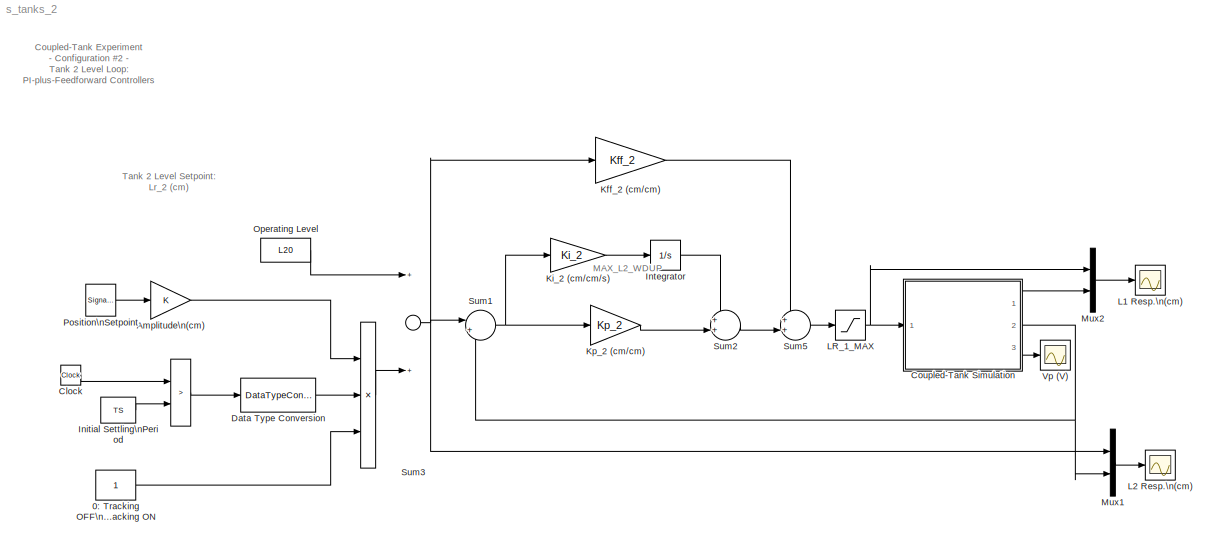
MODEL s_tanks_2
KIND model
BLOCK [Product]    
  Inputs = 3
  Ports = [3, 1]
  SID = 1
BLOCK [RelationalOperator]     
  Operator = >
  Ports = [2, 1]
  SID = 2
BLOCK [Constant] 0: Tracking OFF\n1: Tracking ON
  SID = 3
BLOCK [Gain] Amplitude\n(cm)
  SID = 4
BLOCK [Clock] Clock
  SID = 5
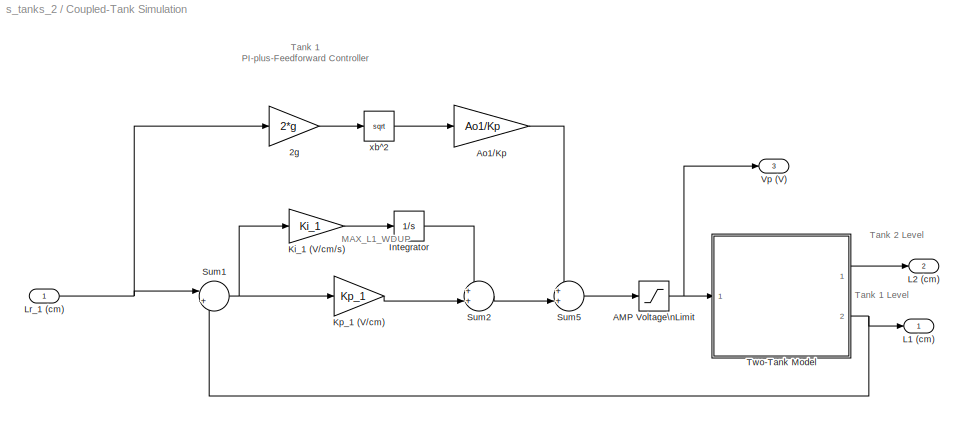
BLOCK [SubSystem] Coupled-Tank Simulation
  Ports = [1, 3]
  RequestExecContextInheritance = off
  SID = 6
  Variant = off
BLOCK [Gain] Coupled-Tank Simulation/2g
  Gain = 2*g
  SID = 8
BLOCK [Saturate] Coupled-Tank Simulation/AMP Voltage\nLimit
  InputPortMap = u0
  LowerLimit = 0
  Ports = [1, 1]
  SID = 9
  UpperLimit = VMAX_AMP
BLOCK [Gain] Coupled-Tank Simulation/Ao1//Kp
  Gain = Ao1/Kp
  SID = 10
BLOCK [Integrator] Coupled-Tank Simulation/Integrator
  LimitOutput = on
  LowerSaturationLimit = - MAX_L1_WDUP
  Ports = [1, 1]
  SID = 11
  UpperSaturationLimit = MAX_L1_WDUP
BLOCK [Gain] Coupled-Tank Simulation/Ki_1 (V//cm//s)
  Gain = Ki_1
  SID = 12
BLOCK [Gain] Coupled-Tank Simulation/Kp_1 (V//cm)
  Gain = Kp_1
  SID = 13
BLOCK [Outport] Coupled-Tank Simulation/L1 (cm)
  IconDisplay = Port number
  InitialOutput = 0
  SID = 42
BLOCK [Outport] Coupled-Tank Simulation/L2 (cm)
  IconDisplay = Port number
  InitialOutput = 0
  Port = 2
  SID = 43
BLOCK [Inport] Coupled-Tank Simulation/Lr_1 (cm)
  IconDisplay = Port number
  SID = 7
BLOCK [Sum] Coupled-Tank Simulation/Sum1
  IconShape = round
  Inputs = |+-
  Ports = [2, 1]
  SID = 14
BLOCK [Sum] Coupled-Tank Simulation/Sum2
  IconShape = round
  Inputs = ++|
  Ports = [2, 1]
  SID = 15
BLOCK [Sum] Coupled-Tank Simulation/Sum5
  IconShape = round
  Inputs = ++|
  Ports = [2, 1]
  SID = 16
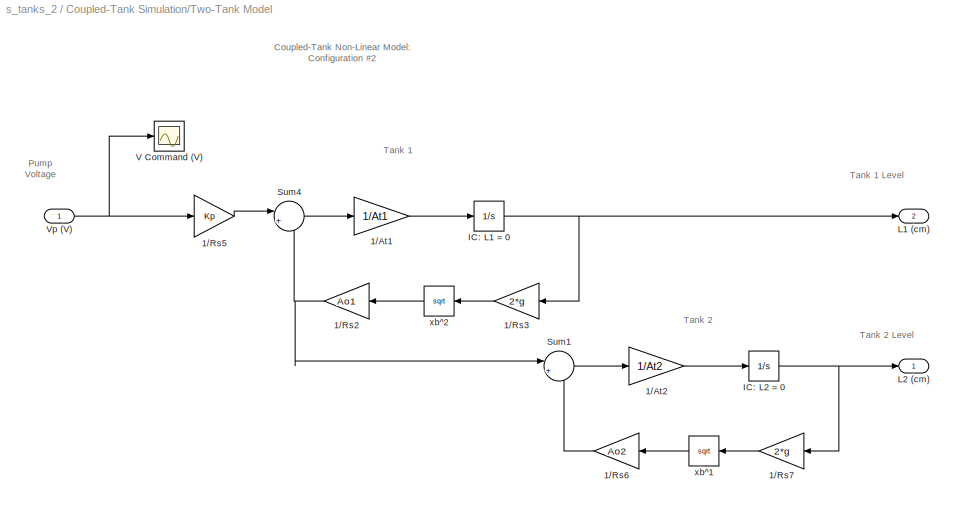
BLOCK [SubSystem] Coupled-Tank Simulation/Two-Tank Model
  Ports = [1, 2]
  RequestExecContextInheritance = off
  SID = 17
  Variant = off
BLOCK [Gain] Coupled-Tank Simulation/Two-Tank Model/1//At1
  Gain = 1/At1
  SID = 19
BLOCK [Gain] Coupled-Tank Simulation/Two-Tank Model/1//At2
  Gain = 1/At2
  SID = 20
BLOCK [Gain] Coupled-Tank Simulation/Two-Tank Model/1//Rs2
  Gain = Ao1
  SID = 21
BLOCK [Gain] Coupled-Tank Simulation/Two-Tank Model/1//Rs3
  Gain = 2*g
  SID = 22
BLOCK [Gain] Coupled-Tank Simulation/Two-Tank Model/1//Rs5
  Gain = Kp
  SID = 23
BLOCK [Gain] Coupled-Tank Simulation/Two-Tank Model/1//Rs6
  Gain = Ao2
  SID = 24
BLOCK [Gain] Coupled-Tank Simulation/Two-Tank Model/1//Rs7
  Gain = 2*g
  SID = 25
BLOCK [Integrator] Coupled-Tank Simulation/Two-Tank Model/IC: L1 = 0
  Ports = [1, 1]
  SID = 26
BLOCK [Integrator] Coupled-Tank Simulation/Two-Tank Model/IC: L2 = 0
  Ports = [1, 1]
  SID = 27
BLOCK [Outport] Coupled-Tank Simulation/Two-Tank Model/L1 (cm)
  IconDisplay = Port number
  InitialOutput = 0
  Port = 2
  SID = 34
BLOCK [Outport] Coupled-Tank Simulation/Two-Tank Model/L2 (cm)
  IconDisplay = Port number
  InitialOutput = 0
  SID = 33
BLOCK [Sum] Coupled-Tank Simulation/Two-Tank Model/Sum1
  IconShape = round
  Inputs = |+-
  Ports = [2, 1]
  SID = 28
BLOCK [Sum] Coupled-Tank Simulation/Two-Tank Model/Sum4
  IconShape = round
  Inputs = |+-
  Ports = [2, 1]
  SID = 29
BLOCK [Scope] Coupled-Tank Simulation/Two-Tank Model/V Command (V)
  NumInputPorts = 1
  Ports = [1]
  SID = 30
  ScopeSpecificationString = C++SS(StrPVP('Location','[90, 597, 641, 902]'),StrPVP('Open','off'),StrPVP('TickLabels','on'),MxPVP('AxesTitles',24,'struct(''axes1'',''%<SignalLabel>'')'),StrPVP('TimeRange','1.000000'),StrPVP('YMin','-1'),StrPVP('YMax','1'),StrPVP('SaveName','ScopeData2'),StrPVP('BlockParamSampleTime','0'),StrPVP('LimitDataPoints','on'),StrPVP('DataFormat','Array'),StrPVP('Decimation','1'),StrPVP('BlockParamSamp...<+16ch>
BLOCK [Inport] Coupled-Tank Simulation/Two-Tank Model/Vp (V)
  IconDisplay = Port number
  SID = 18
BLOCK [Math] Coupled-Tank Simulation/Two-Tank Model/xb^1
  Operator = sqrt
  Ports = [1, 1]
  SID = 31
BLOCK [Math] Coupled-Tank Simulation/Two-Tank Model/xb^2
  Operator = sqrt
  Ports = [1, 1]
  SID = 32
BLOCK [Outport] Coupled-Tank Simulation/Vp (V)
  IconDisplay = Port number
  InitialOutput = 0
  Port = 3
  SID = 44
BLOCK [Math] Coupled-Tank Simulation/xb^2
  Operator = sqrt
  Ports = [1, 1]
  SID = 41
BLOCK [DataTypeConversion] Data Type Conversion
  RndMeth = Floor
  SID = 49
  SaturateOnIntegerOverflow = off
BLOCK [Constant] Initial Settling\nPeriod
  SID = 50
  Value = TS
BLOCK [Integrator] Integrator
  LimitOutput = on
  LowerSaturationLimit = - MAX_L2_WDUP
  Ports = [1, 1]
  SID = 51
  UpperSaturationLimit = MAX_L2_WDUP
BLOCK [Gain] Kff_2 (cm//cm)
  Gain = Kff_2
  SID = 52
BLOCK [Gain] Ki_2 (cm//cm//s)
  Gain = Ki_2
  SID = 53
BLOCK [Gain] Kp_2 (cm//cm)
  Gain = Kp_2
  SID = 54
BLOCK [Scope] L1 Resp.\n(cm)
  NumInputPorts = 1
  Ports = [1]
  SID = 55
  ScopeSpecificationString = C++SS(StrPVP('Location','[1072, 54, 1653, 375]'),StrPVP('Open','off'),StrPVP('TickLabels','on'),MxPVP('AxesTitles',24,'struct(''axes1'',''%<SignalLabel>'')'),StrPVP('TimeRange','60'),StrPVP('YMin','0'),StrPVP('YMax','30'),StrPVP('SaveToWorkspace','on'),StrPVP('SaveName','data_L1'),StrPVP('LimitDataPoints','off'),StrPVP('BlockParamSampleTime','0'),StrPVP('DataFormat','Array'),StrPVP('Decimation','1...<+41ch>
BLOCK [Scope] L2 Resp.\n(cm)
  NumInputPorts = 1
  Ports = [1]
  SID = 56
  ScopeSpecificationString = C++SS(StrPVP('Location','[1072, 438, 1651, 761]'),StrPVP('Open','off'),StrPVP('TickLabels','on'),StrPVP('ZoomMode','yonly'),MxPVP('AxesTitles',24,'struct(''axes1'',''%<SignalLabel>'')'),StrPVP('TimeRange','60'),StrPVP('YMin','12'),StrPVP('YMax','17'),StrPVP('SaveToWorkspace','on'),StrPVP('SaveName','data_L2'),StrPVP('LimitDataPoints','off'),StrPVP('BlockParamSampleTime','0'),StrPVP('DataFormat','A...<+70ch>
BLOCK [Saturate] LR_1_MAX
  InputPortMap = u0
  LowerLimit = 0
  Ports = [1, 1]
  SID = 57
  UpperLimit = LR_1_MAX
BLOCK [Mux] Mux1
  DisplayOption = bar
  Inputs = 2
  Ports = [2, 1]
  SID = 58
BLOCK [Mux] Mux2
  DisplayOption = bar
  Inputs = 2
  Ports = [2, 1]
  SID = 59
BLOCK [Constant] Operating Level
  SID = 60
  Value = L20
BLOCK [SignalGenerator] Position\nSetpoint
  Frequency = 0.018
  Ports = [0, 1]
  SID = 61
  WaveForm = square
BLOCK [Sum] Sum1
  IconShape = round
  Inputs = |+-
  Ports = [2, 1]
  SID = 62
BLOCK [Sum] Sum2
  IconShape = round
  Inputs = ++|
  Ports = [2, 1]
  SID = 63
BLOCK [Sum] Sum3
  Ports = [2, 1]
  SID = 64
BLOCK [Sum] Sum5
  IconShape = round
  Inputs = ++|
  Ports = [2, 1]
  SID = 65
BLOCK [Scope] Vp (V)
  NumInputPorts = 1
  Ports = [1]
  SID = 66
  ScopeSpecificationString = C++SS(StrPVP('Location','[17, 678, 597, 998]'),StrPVP('Open','off'),StrPVP('TickLabels','on'),MxPVP('AxesTitles',24,'struct(''axes1'',''%<SignalLabel>'')'),StrPVP('TimeRange','60'),StrPVP('YMax','25'),StrPVP('SaveToWorkspace','on'),StrPVP('SaveName','data_Vp'),StrPVP('LimitDataPoints','off'),StrPVP('BlockParamSampleTime','0'),StrPVP('DataFormat','Array'),StrPVP('Decimation','1'),StrPVP('BlockParam...<+20ch>
ANNOTATION (root): Coupled-Tank Experiment\n- Configuration #2 -\nTank 2 Level Loop:\nPI-plus-Feedforward Controllers
ANNOTATION (root): MAX_L2_WDUP
ANNOTATION (root): Tank 2 Level Setpoint: \nLr_2 (cm)
ANNOTATION Coupled-Tank Simulation: MAX_L1_WDUP
ANNOTATION Coupled-Tank Simulation: Tank 1 Level
ANNOTATION Coupled-Tank Simulation: Tank 1 \nPI-plus-Feedforward Controller
ANNOTATION Coupled-Tank Simulation: Tank 2 Level
ANNOTATION Coupled-Tank Simulation/Two-Tank Model: Coupled-Tank Non-Linear Model:\nConfiguration #2
ANNOTATION Coupled-Tank Simulation/Two-Tank Model: Pump\nVoltage
ANNOTATION Coupled-Tank Simulation/Two-Tank Model: Tank 1
ANNOTATION Coupled-Tank Simulation/Two-Tank Model: Tank 1 Level
ANNOTATION Coupled-Tank Simulation/Two-Tank Model: Tank 2
ANNOTATION Coupled-Tank Simulation/Two-Tank Model: Tank 2 Level
LINE     :1 -> Data Type Conversion:1
LINE    :1 -> Sum3:2
LINE 0: Tracking OFF\n1: Tracking ON:1 ->    :3
LINE Amplitude\n(cm):1 ->    :1
LINE Clock:1 ->     :1
LINE Coupled-Tank Simulation/2g:1 -> Coupled-Tank Simulation/xb^2:1
NET Coupled-Tank Simulation/AMP Voltage\nLimit:1 -> Coupled-Tank Simulation/Two-Tank Model:1, Coupled-Tank Simulation/Vp (V):1
LINE Coupled-Tank Simulation/Ao1//Kp:1 -> Coupled-Tank Simulation/Sum5:1
LINE Coupled-Tank Simulation/Integrator:1 -> Coupled-Tank Simulation/Sum2:1
LINE Coupled-Tank Simulation/Ki_1 (V//cm//s):1 -> Coupled-Tank Simulation/Integrator:1
LINE Coupled-Tank Simulation/Kp_1 (V//cm):1 -> Coupled-Tank Simulation/Sum2:2
NET Coupled-Tank Simulation/Lr_1 (cm):1 -> Coupled-Tank Simulation/2g:1, Coupled-Tank Simulation/Sum1:1
NET Coupled-Tank Simulation/Sum1:1 -> Coupled-Tank Simulation/Ki_1 (V//cm//s):1, Coupled-Tank Simulation/Kp_1 (V//cm):1
LINE Coupled-Tank Simulation/Sum2:1 -> Coupled-Tank Simulation/Sum5:2
LINE Coupled-Tank Simulation/Sum5:1 -> Coupled-Tank Simulation/AMP Voltage\nLimit:1
LINE Coupled-Tank Simulation/Two-Tank Model/1//At1:1 -> Coupled-Tank Simulation/Two-Tank Model/IC: L1 = 0:1
LINE Coupled-Tank Simulation/Two-Tank Model/1//At2:1 -> Coupled-Tank Simulation/Two-Tank Model/IC: L2 = 0:1
NET Coupled-Tank Simulation/Two-Tank Model/1//Rs2:1 -> Coupled-Tank Simulation/Two-Tank Model/Sum1:1, Coupled-Tank Simulation/Two-Tank Model/Sum4:2
LINE Coupled-Tank Simulation/Two-Tank Model/1//Rs3:1 -> Coupled-Tank Simulation/Two-Tank Model/xb^2:1
LINE Coupled-Tank Simulation/Two-Tank Model/1//Rs5:1 -> Coupled-Tank Simulation/Two-Tank Model/Sum4:1
LINE Coupled-Tank Simulation/Two-Tank Model/1//Rs6:1 -> Coupled-Tank Simulation/Two-Tank Model/Sum1:2
LINE Coupled-Tank Simulation/Two-Tank Model/1//Rs7:1 -> Coupled-Tank Simulation/Two-Tank Model/xb^1:1
NET Coupled-Tank Simulation/Two-Tank Model/IC: L1 = 0:1 -> Coupled-Tank Simulation/Two-Tank Model/1//Rs3:1, Coupled-Tank Simulation/Two-Tank Model/L1 (cm):1
NET Coupled-Tank Simulation/Two-Tank Model/IC: L2 = 0:1 -> Coupled-Tank Simulation/Two-Tank Model/1//Rs7:1, Coupled-Tank Simulation/Two-Tank Model/L2 (cm):1
LINE Coupled-Tank Simulation/Two-Tank Model/Sum1:1 -> Coupled-Tank Simulation/Two-Tank Model/1//At2:1
LINE Coupled-Tank Simulation/Two-Tank Model/Sum4:1 -> Coupled-Tank Simulation/Two-Tank Model/1//At1:1
NET Coupled-Tank Simulation/Two-Tank Model/Vp (V):1 -> Coupled-Tank Simulation/Two-Tank Model/1//Rs5:1, Coupled-Tank Simulation/Two-Tank Model/V Command (V):1
LINE Coupled-Tank Simulation/Two-Tank Model/xb^1:1 -> Coupled-Tank Simulation/Two-Tank Model/1//Rs6:1
LINE Coupled-Tank Simulation/Two-Tank Model/xb^2:1 -> Coupled-Tank Simulation/Two-Tank Model/1//Rs2:1
LINE Coupled-Tank Simulation/Two-Tank Model:1 -> Coupled-Tank Simulation/L2 (cm):1
NET Coupled-Tank Simulation/Two-Tank Model:2 -> Coupled-Tank Simulation/L1 (cm):1, Coupled-Tank Simulation/Sum1:2
LINE Coupled-Tank Simulation/xb^2:1 -> Coupled-Tank Simulation/Ao1//Kp:1
LINE Coupled-Tank Simulation:1 -> Mux2:2
NET Coupled-Tank Simulation:2 -> Mux1:2, Sum1:2
LINE Coupled-Tank Simulation:3 -> Vp (V):1
LINE Data Type Conversion:1 ->    :2
LINE Initial Settling\nPeriod:1 ->     :2
LINE Integrator:1 -> Sum2:1
LINE Kff_2 (cm//cm):1 -> Sum5:1
LINE Ki_2 (cm//cm//s):1 -> Integrator:1
LINE Kp_2 (cm//cm):1 -> Sum2:2
NET LR_1_MAX:1 -> Coupled-Tank Simulation:1, Mux2:1
LINE Mux1:1 -> L2 Resp.\n(cm):1
LINE Mux2:1 -> L1 Resp.\n(cm):1
LINE Operating Level:1 -> Sum3:1
LINE Position\nSetpoint:1 -> Amplitude\n(cm):1
NET Sum1:1 -> Ki_2 (cm//cm//s):1, Kp_2 (cm//cm):1
LINE Sum2:1 -> Sum5:2
NET Sum3:1 -> Kff_2 (cm//cm):1, Mux1:1, Sum1:1
LINE Sum5:1 -> LR_1_MAX:1
note: NET lines group one-source signal fan-out (src -> all destinations, sorted); 1:1 wires keep LINE
